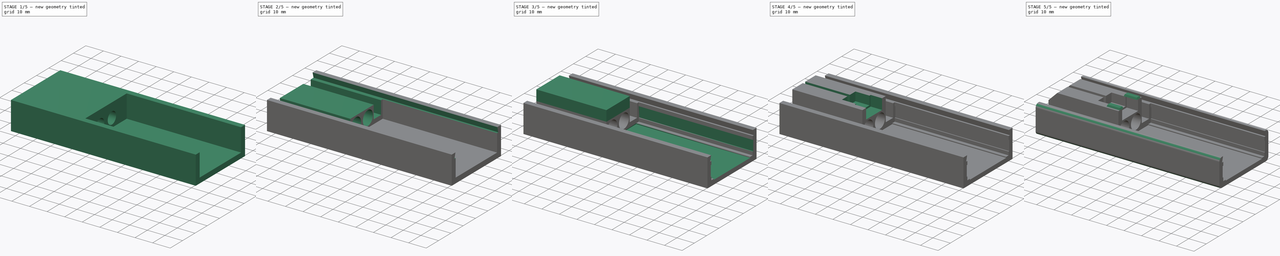
[diagram: build sequence overview — one tinted view per stage of 5, left to right]
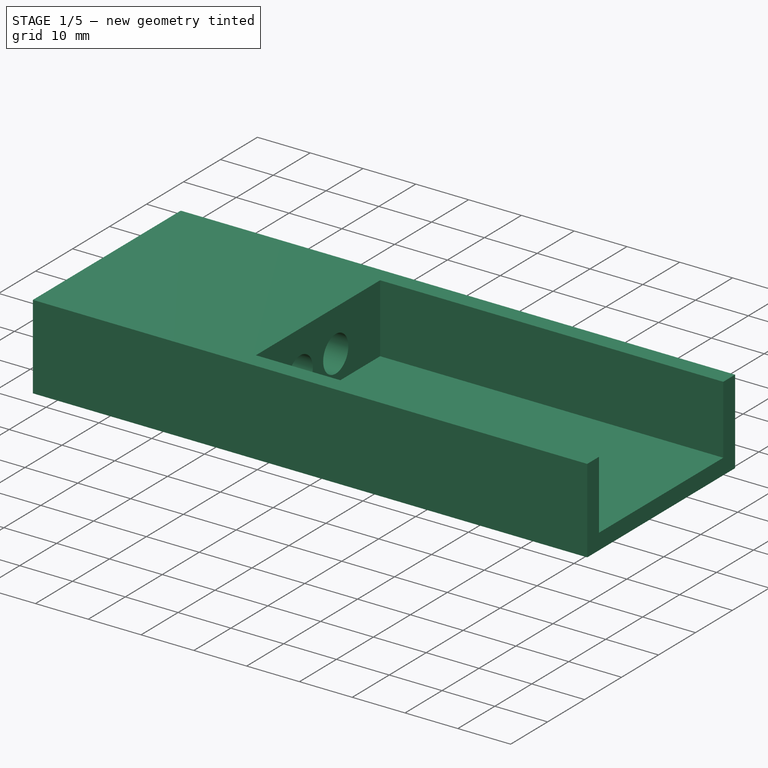
[diagram: stage 1 of 5 — iso view after this stage's code; geometry added in this stage tinted green]
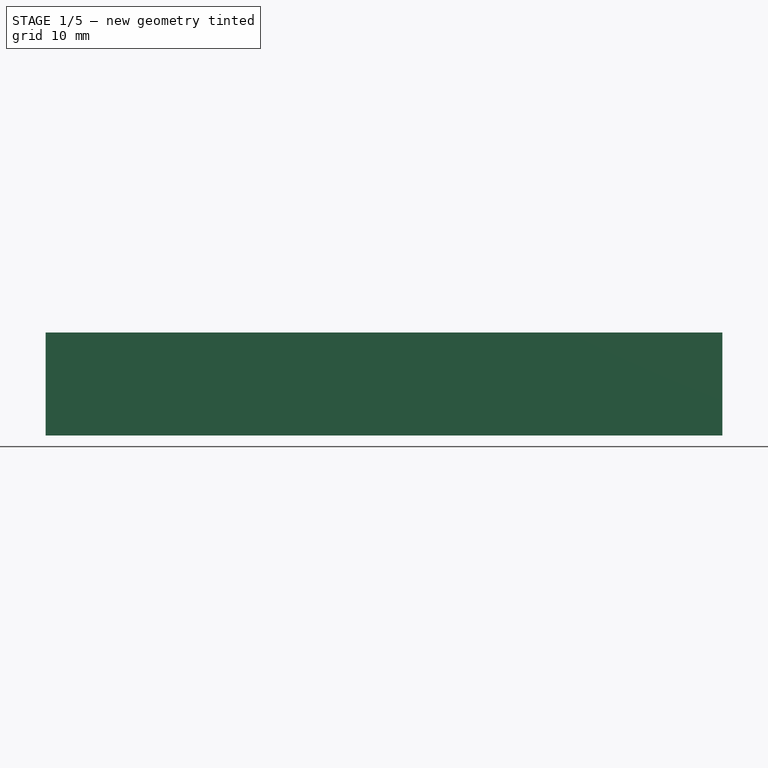
[diagram: stage 1 of 5 — front view after this stage's code; geometry added in this stage tinted green]
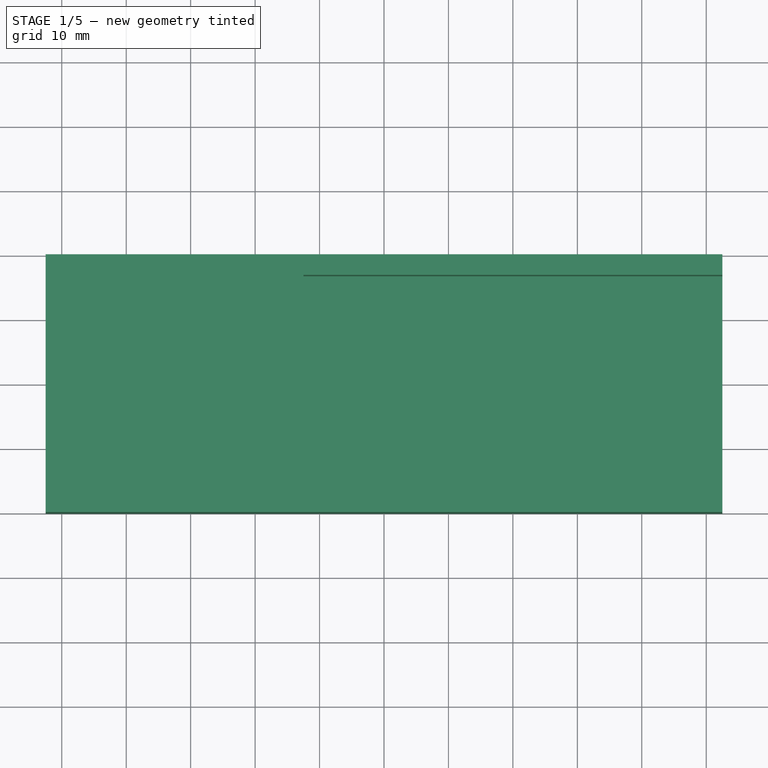
[diagram: stage 1 of 5 — top view after this stage's code; geometry added in this stage tinted green]
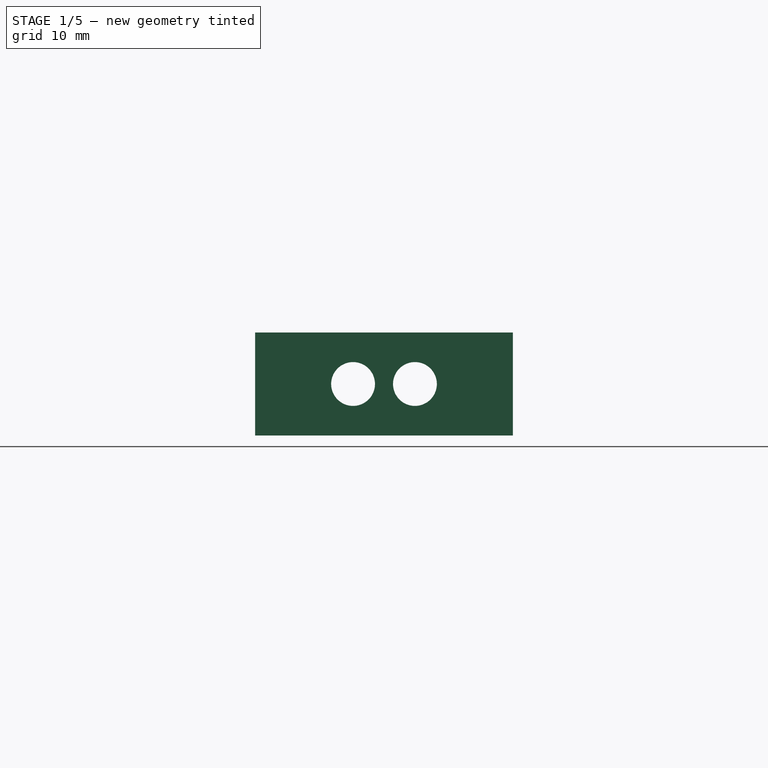
[diagram: stage 1 of 5 — right view after this stage's code; geometry added in this stage tinted green]
FCSTD DOCUMENT  (FreeCAD 0.20R29603 (Git))
Label: shassi
License: All rights reserved
LicenseURL: http://en.wikipedia.org/wiki/All_rights_reserved
objects: Sketcher::SketchObject×14, PartDesign::Pocket×11, PartDesign::Pad×3, PartDesign::Fillet×1, PartDesign::Chamfer×1, PartDesign::Body×1
note: 47 computed .brp shape members not serialized (recipe doc carries the construction recipe); baked Part::Feature solids carry a one-line shape summary decoded from their .brp

FEATURE [Sketcher::SketchObject] Sketch
  FullyConstrained = true
  MapMode = 5
  Support = -> [XY_Plane]
  sketch-geometry (4):
    g0: LineSegment StartX=-52.5 StartY=20 StartZ=0 EndX=52.5 EndY=20 EndZ=0
    g1: LineSegment StartX=52.5 StartY=20 StartZ=0 EndX=52.5 EndY=-20 EndZ=0
    g2: LineSegment StartX=52.5 StartY=-20 StartZ=0 EndX=-52.5 EndY=-20 EndZ=0
    g3: LineSegment StartX=-52.5 StartY=-20 StartZ=0 EndX=-52.5 EndY=20 EndZ=0
  constraints (11):
    c: Coincident(g0,g1)
    c: Coincident(g1,g2)
    c: Coincident(g2,g3)
    c: Coincident(g3,g0)
    c: Horizontal(g0)
    c: Horizontal(g2)
    c: Vertical(g1)
    c: Vertical(g3)
    c: Symmetric(g0,g1,g-1)
    c: DistanceX(g0,g0) = 105
    c: DistanceY(g3,g3) = 40
FEATURE [PartDesign::Pad] Pad
  Direction = (0,0,1)
  Length = 16
  Length2 = 10
  Profile = -> Sketch
  ReferenceAxis = -> Sketch [N_Axis]
  Type = 0
FEATURE [Sketcher::SketchObject] Sketch001
  ExternalGeometry = -> [Pad]
  FullyConstrained = true
  MapMode = 5
  Placement = pos=(0,0,16) rot=(0,0,1;0rad)
  Support = -> [Pad]
  sketch-geometry (4):
    g0: LineSegment StartX=-12.5 StartY=16.8 StartZ=0 EndX=52.5 EndY=16.8 EndZ=0
    g1: LineSegment StartX=52.5 StartY=16.8 StartZ=0 EndX=52.5 EndY=-16.8 EndZ=0
    g2: LineSegment StartX=52.5 StartY=-16.8 StartZ=0 EndX=-12.5 EndY=-16.8 EndZ=0
    g3: LineSegment StartX=-12.5 StartY=-16.8 StartZ=0 EndX=-12.5 EndY=16.8 EndZ=0
  constraints (12):
    c: Coincident(g0,g1)
    c: Coincident(g1,g2)
    c: Coincident(g2,g3)
    c: Coincident(g3,g0)
    c: Horizontal(g0)
    c: Horizontal(g2)
    c: Vertical(g1)
    c: Vertical(g3)
    c: PointOnObject(g0,g-3)
    c: DistanceY(g3,g3) = 33.6
    c: DistanceX(g0,g0) = 65
    c: Distance(g0,g-1) = 16.8
FEATURE [PartDesign::Pocket] Pocket
  BaseFeature = -> Pad
  Direction = (0,0,-1)
  Length = 13
  Length2 = 5
  Profile = -> Sketch001
  ReferenceAxis = -> Sketch001 [N_Axis]
  Type = 0
FEATURE [Sketcher::SketchObject] Sketch002
  ExternalGeometry = -> [Pocket]
  FullyConstrained = true
  MapMode = 5
  Placement = pos=(-12.5,0,0) rot=(0.57735,0.57735,0.57735;2.0944rad)
  Support = -> [Pocket]
  sketch-geometry (2):
    g0: Circle CenterX=4.8 CenterY=8 CenterZ=0 NormalX=0 NormalY=0 NormalZ=1 AngleXU=0 Radius=3.4
    g1: Circle CenterX=-4.8 CenterY=8 CenterZ=0 NormalX=0 NormalY=0 NormalZ=1 AngleXU=0 Radius=3.4
  constraints (5):
    c: Radius(g0) = 3.4
    c: Distance(g0,g-3) = 8
    c: Distance(g0,g-4) = 12
    c: Equal(g1,g0)
    c: Symmetric(g1,g0,g-2)
FEATURE [PartDesign::Pocket] Pocket001
  BaseFeature = -> Pocket
  Direction = (-1,0,0)
  Length = 5
  Length2 = 5
  Profile = -> Sketch002
  ReferenceAxis = -> Sketch002 [N_Axis]
  Type = 1
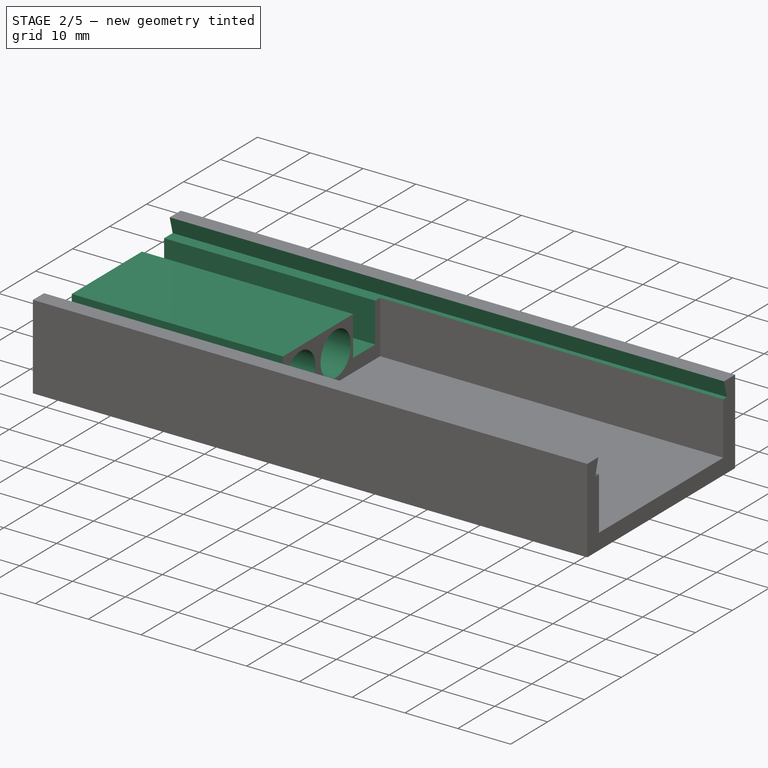
[diagram: stage 2 of 5 — iso view after this stage's code; geometry added in this stage tinted green]
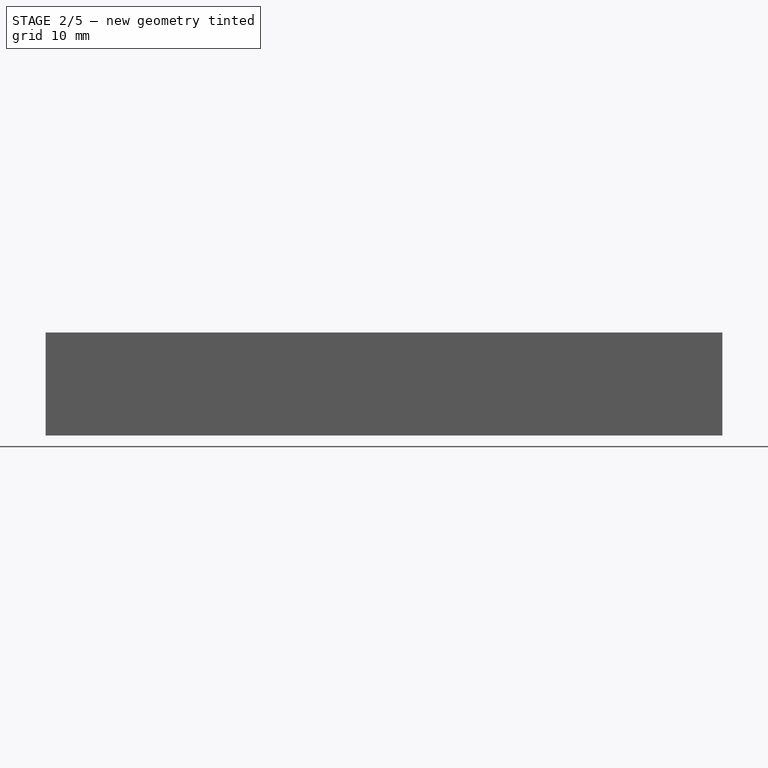
[diagram: stage 2 of 5 — front view after this stage's code; geometry added in this stage tinted green]
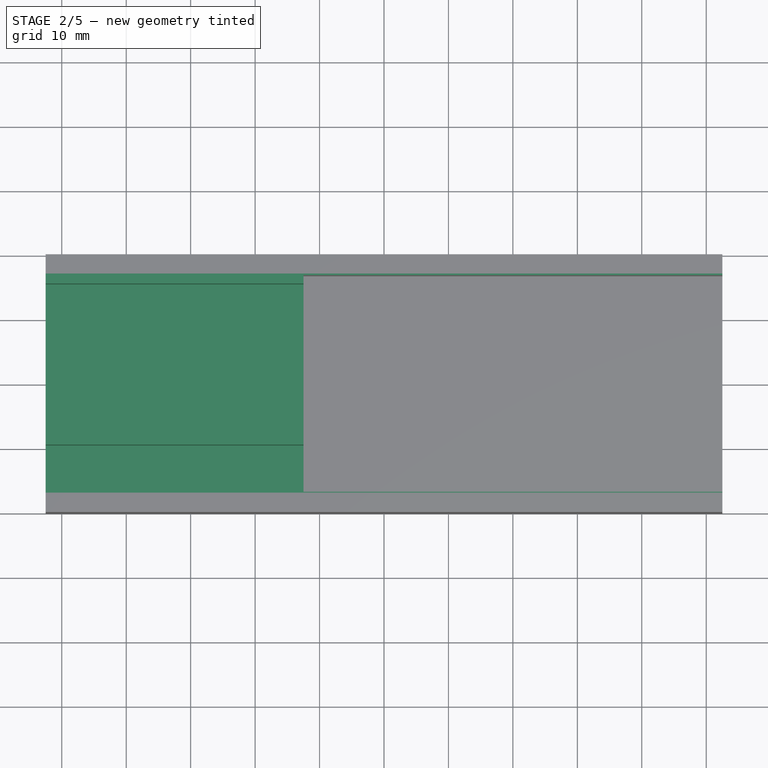
[diagram: stage 2 of 5 — top view after this stage's code; geometry added in this stage tinted green]
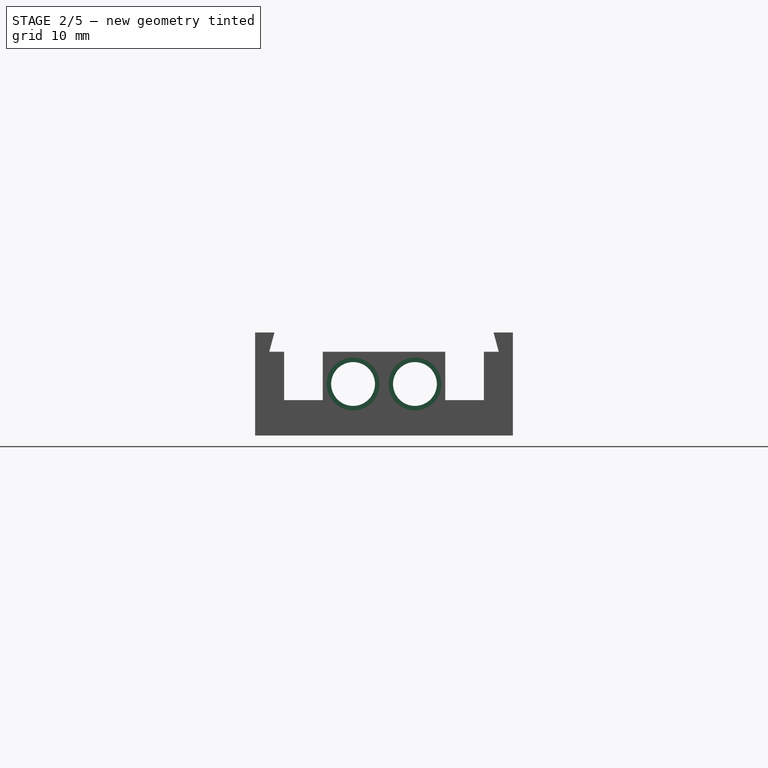
[diagram: stage 2 of 5 — right view after this stage's code; geometry added in this stage tinted green]
FEATURE [Sketcher::SketchObject] Sketch014
  ExternalGeometry = -> [Pocket001]
  FullyConstrained = true
  MapMode = 5
  Placement = pos=(-12.5,0,0) rot=(0.57735,0.57735,0.57735;2.0944rad)
  Support = -> [Pocket001]
  sketch-geometry (2):
    g0: Circle CenterX=4.8 CenterY=8 CenterZ=0 NormalX=0 NormalY=0 NormalZ=1 AngleXU=0 Radius=4.1
    g1: Circle CenterX=-4.8 CenterY=8 CenterZ=0 NormalX=0 NormalY=0 NormalZ=1 AngleXU=0 Radius=4.1
  constraints (4):
    c: Equal(g1,g0)
    c: Radius(g0) = 4.1
    c: Coincident(g1,g-3)
    c: Coincident(g0,g-4)
FEATURE [PartDesign::Pocket] Pocket002
  BaseFeature = -> Pocket001
  Direction = (-1,0,0)
  Length = 25
  Length2 = 5
  Profile = -> Sketch014
  ReferenceAxis = -> Sketch014 [N_Axis]
  Type = 0
FEATURE [Sketcher::SketchObject] Sketch006
  ExternalGeometry = -> [Pocket002]
  FullyConstrained = true
  MapMode = 5
  Placement = pos=(0,0,16) rot=(0,0,1;0rad)
  sketch-geometry (8):
    g0: LineSegment StartX=-52.5 StartY=15.5 StartZ=0 EndX=-12.5 EndY=15.5 EndZ=0
    g1: LineSegment StartX=-12.5 StartY=15.5 StartZ=0 EndX=-12.5 EndY=9.5 EndZ=0
    g2: LineSegment StartX=-12.5 StartY=9.5 StartZ=0 EndX=-52.5 EndY=9.5 EndZ=0
    g3: LineSegment StartX=-52.5 StartY=9.5 StartZ=0 EndX=-52.5 EndY=15.5 EndZ=0
    g4: LineSegment StartX=-52.5 StartY=-9.5 StartZ=0 EndX=-12.5 EndY=-9.5 EndZ=0
    g5: LineSegment StartX=-12.5 StartY=-9.5 StartZ=0 EndX=-12.5 EndY=-15.5 EndZ=0
    g6: LineSegment StartX=-12.5 StartY=-15.5 StartZ=0 EndX=-52.5 EndY=-15.5 EndZ=0
    g7: LineSegment StartX=-52.5 StartY=-15.5 StartZ=0 EndX=-52.5 EndY=-9.5 EndZ=0
  constraints (24):
    c: Coincident(g0,g1)
    c: Coincident(g1,g2)
    c: Coincident(g2,g3)
    c: Coincident(g3,g0)
    c: Horizontal(g0)
    c: Horizontal(g2)
    c: Vertical(g1)
    c: Vertical(g3)
    c: Coincident(g4,g5)
    c: Coincident(g5,g6)
    c: Coincident(g6,g7)
    c: Coincident(g7,g4)
    c: Horizontal(g4)
    c: Horizontal(g6)
    c: Vertical(g5)
    c: Vertical(g7)
    c: Equal(g0,g4)
    c: Equal(g3,g7)
    c: DistanceY(g3,g3) = 6
    c: PointOnObject(g0,g-3)
    c: PointOnObject(g4,g-3)
    c: PointOnObject(g0,g-4)
    c: Distance(g0,g-5) = 4.5
    c: Distance(g6,g-6) = 4.5
FEATURE [PartDesign::Pocket] Pocket003
  BaseFeature = -> Pocket002
  Direction = (0,0,-1)
  Length = 10.5
  Length2 = 5
  Profile = -> Sketch006
  ReferenceAxis = -> Sketch006 [N_Axis]
  Type = 0
FEATURE [Sketcher::SketchObject] Sketch011
  ExternalGeometry = -> [Pocket003]
  FullyConstrained = true
  MapMode = 5
  Placement = pos=(0,0,16) rot=(0,0,1;0rad)
  sketch-geometry (4):
    g0: LineSegment StartX=-52.5 StartY=17 StartZ=0 EndX=52.5 EndY=17 EndZ=0
    g1: LineSegment StartX=52.5 StartY=17 StartZ=0 EndX=52.5 EndY=-17 EndZ=0
    g2: LineSegment StartX=52.5 StartY=-17 StartZ=0 EndX=-52.5 EndY=-17 EndZ=0
    g3: LineSegment StartX=-52.5 StartY=-17 StartZ=0 EndX=-52.5 EndY=17 EndZ=0
  constraints (12):
    c: Coincident(g0,g1)
    c: Coincident(g1,g2)
    c: Coincident(g2,g3)
    c: Coincident(g3,g0)
    c: Horizontal(g0)
    c: Horizontal(g2)
    c: Vertical(g1)
    c: Vertical(g3)
    c: Distance(g0,g-5) = 3
    c: Distance(g1,g-6) = 3
    c: PointOnObject(g0,g-3)
    c: PointOnObject(g0,g-4)
FEATURE [PartDesign::Pocket] Pocket004
  BaseFeature = -> Pocket003
  Direction = (0,0,-1)
  Length = 3
  Length2 = 5
  Profile = -> Sketch011
  ReferenceAxis = -> Sketch011 [N_Axis]
  TaperAngle = 15
  Type = 0
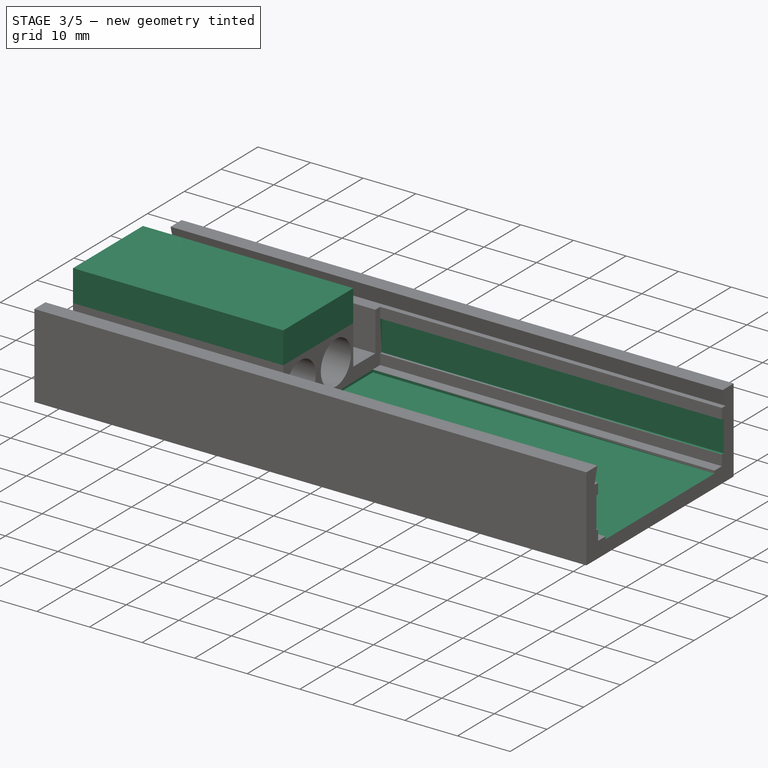
[diagram: stage 3 of 5 — iso view after this stage's code; geometry added in this stage tinted green]
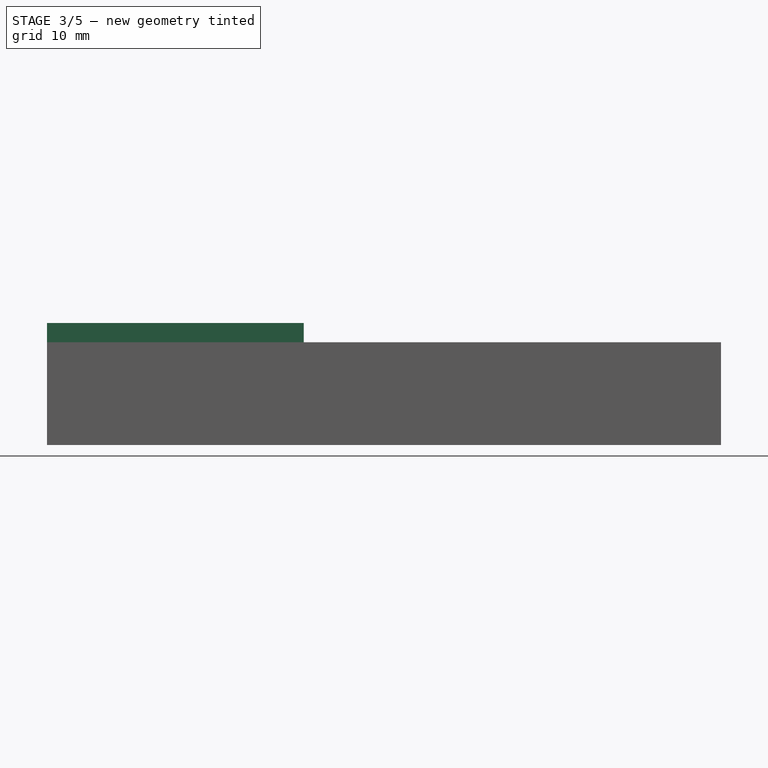
[diagram: stage 3 of 5 — front view after this stage's code; geometry added in this stage tinted green]
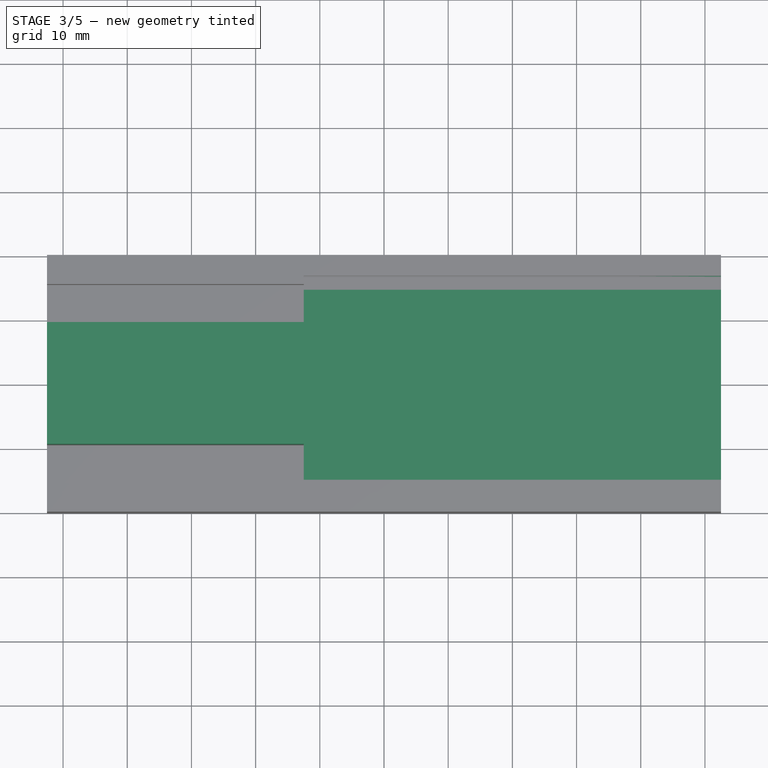
[diagram: stage 3 of 5 — top view after this stage's code; geometry added in this stage tinted green]
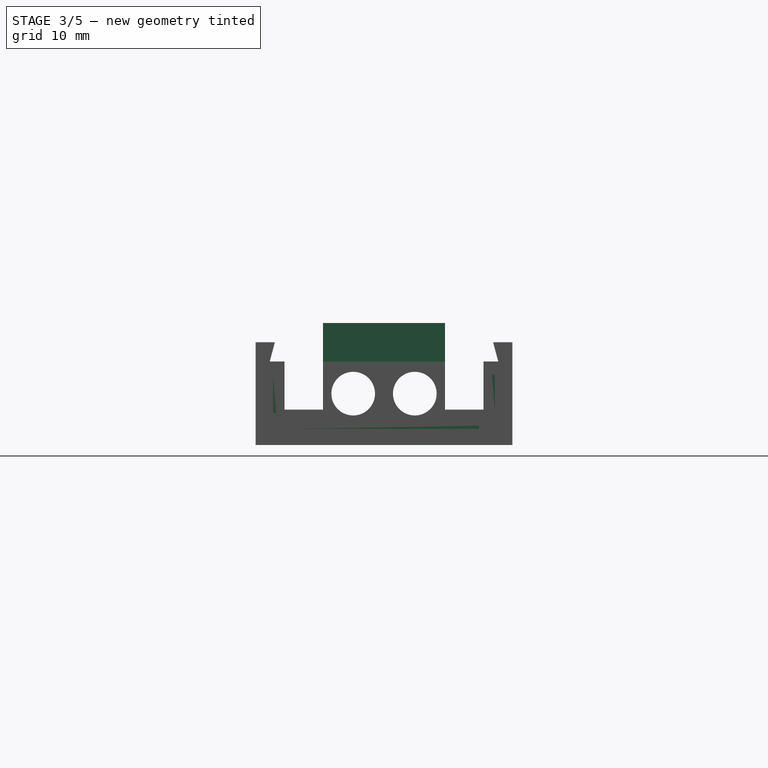
[diagram: stage 3 of 5 — right view after this stage's code; geometry added in this stage tinted green]
FEATURE [Sketcher::SketchObject] Sketch008
  ExternalGeometry = -> [Pocket004]
  FullyConstrained = true
  MapMode = 5
  Placement = pos=(0,0,3) rot=(0,0,1;0rad)
  sketch-geometry (4):
    g0: LineSegment StartX=-12.5 StartY=14.8 StartZ=0 EndX=52.5 EndY=14.8 EndZ=0
    g1: LineSegment StartX=52.5 StartY=14.8 StartZ=0 EndX=52.5 EndY=-14.8 EndZ=0
    g2: LineSegment StartX=52.5 StartY=-14.8 StartZ=0 EndX=-12.5 EndY=-14.8 EndZ=0
    g3: LineSegment StartX=-12.5 StartY=-14.8 StartZ=0 EndX=-12.5 EndY=14.8 EndZ=0
  constraints (12):
    c: Coincident(g0,g1)
    c: Coincident(g1,g2)
    c: Coincident(g2,g3)
    c: Coincident(g3,g0)
    c: Horizontal(g0)
    c: Horizontal(g2)
    c: Vertical(g1)
    c: Vertical(g3)
    c: PointOnObject(g0,g-5)
    c: PointOnObject(g0,g-6)
    c: Distance(g0,g-3) = 2
    c: Distance(g1,g-4) = 2
FEATURE [PartDesign::Pocket] Pocket005
  BaseFeature = -> Pocket004
  Direction = (0,0,-1)
  Length = 0.5
  Length2 = 5
  Profile = -> Sketch008
  ReferenceAxis = -> Sketch008 [N_Axis]
  Type = 0
FEATURE [Sketcher::SketchObject] Sketch010
  ExternalGeometry = -> [Pocket005]
  FullyConstrained = true
  MapMode = 5
  Placement = pos=(0,-16.8,0) rot=(0,0.707107,0.707107;3.14159rad)
  sketch-geometry (4):
    g0: LineSegment StartX=-52.5 StartY=11 StartZ=0 EndX=12.5 EndY=11 EndZ=0
    g1: LineSegment StartX=12.5 StartY=11 StartZ=0 EndX=12.5 EndY=5 EndZ=0
    g2: LineSegment StartX=12.5 StartY=5 StartZ=0 EndX=-52.5 EndY=5 EndZ=0
    g3: LineSegment StartX=-52.5 StartY=5 StartZ=0 EndX=-52.5 EndY=11 EndZ=0
  constraints (12):
    c: Coincident(g0,g1)
    c: Coincident(g1,g2)
    c: Coincident(g2,g3)
    c: Coincident(g3,g0)
    c: Horizontal(g0)
    c: Horizontal(g2)
    c: Vertical(g1)
    c: Vertical(g3)
    c: Distance(g0,g-4) = 2
    c: Distance(g2,g-5) = 2
    c: PointOnObject(g0,g-3)
    c: PointOnObject(g0,g-6)
FEATURE [PartDesign::Pocket] Pocket006
  BaseFeature = -> Pocket005
  Direction = (0,-1,2e-16)
  Length = 0.5
  Length2 = 5
  Profile = -> Sketch010
  ReferenceAxis = -> Sketch010 [N_Axis]
  Type = 0
FEATURE [Sketcher::SketchObject] Sketch015
  ExternalGeometry = -> [Pocket006]
  FullyConstrained = true
  MapMode = 5
  Placement = pos=(0,16.8,0) rot=(1,0,0;1.5708rad)
  Support = -> [Pocket006]
  sketch-geometry (4):
    g0: LineSegment StartX=-12.5 StartY=11 StartZ=0 EndX=52.5 EndY=11 EndZ=0
    g1: LineSegment StartX=52.5 StartY=11 StartZ=0 EndX=52.5 EndY=5 EndZ=0
    g2: LineSegment StartX=52.5 StartY=5 StartZ=0 EndX=-12.5 EndY=5 EndZ=0
    g3: LineSegment StartX=-12.5 StartY=5 StartZ=0 EndX=-12.5 EndY=11 EndZ=0
  constraints (12):
    c: Coincident(g0,g1)
    c: Coincident(g1,g2)
    c: Coincident(g2,g3)
    c: Coincident(g3,g0)
    c: Horizontal(g0)
    c: Horizontal(g2)
    c: Vertical(g1)
    c: Vertical(g3)
    c: Distance(g0,g-3) = 2
    c: Distance(g1,g-4) = 2
    c: PointOnObject(g0,g-5)
    c: PointOnObject(g0,g-6)
FEATURE [PartDesign::Pocket] Pocket007
  BaseFeature = -> Pocket006
  Direction = (0,1,-2e-16)
  Length = 0.5
  Length2 = 5
  Profile = -> Sketch015
  ReferenceAxis = -> Sketch015 [N_Axis]
  Type = 0
FEATURE [Sketcher::SketchObject] Sketch016
  ExternalGeometry = -> [Pocket007]
  FullyConstrained = true
  MapMode = 5
  Placement = pos=(0,0,13) rot=(0,0,1;0rad)
  Support = -> [Pocket007]
  sketch-geometry (4):
    g0: LineSegment StartX=-52.5 StartY=9.5 StartZ=0 EndX=-12.5 EndY=9.5 EndZ=0
    g1: LineSegment StartX=-12.5 StartY=9.5 StartZ=0 EndX=-12.5 EndY=-9.5 EndZ=0
    g2: LineSegment StartX=-12.5 StartY=-9.5 StartZ=0 EndX=-52.5 EndY=-9.5 EndZ=0
    g3: LineSegment StartX=-52.5 StartY=-9.5 StartZ=0 EndX=-52.5 EndY=9.5 EndZ=0
  constraints (12):
    c: Coincident(g0,g1)
    c: Coincident(g1,g2)
    c: Coincident(g2,g3)
    c: Coincident(g3,g0)
    c: Horizontal(g0)
    c: Horizontal(g2)
    c: Vertical(g1)
    c: Vertical(g3)
    c: PointOnObject(g0,g-3)
    c: PointOnObject(g2,g-4)
    c: PointOnObject(g2,g-5)
    c: PointOnObject(g1,g-6)
FEATURE [PartDesign::Pad] Pad001
  BaseFeature = -> Pocket007
  Direction = (0,0,1)
  Length = 6
  Length2 = 10
  Profile = -> Sketch016
  ReferenceAxis = -> Sketch016 [N_Axis]
  Type = 0
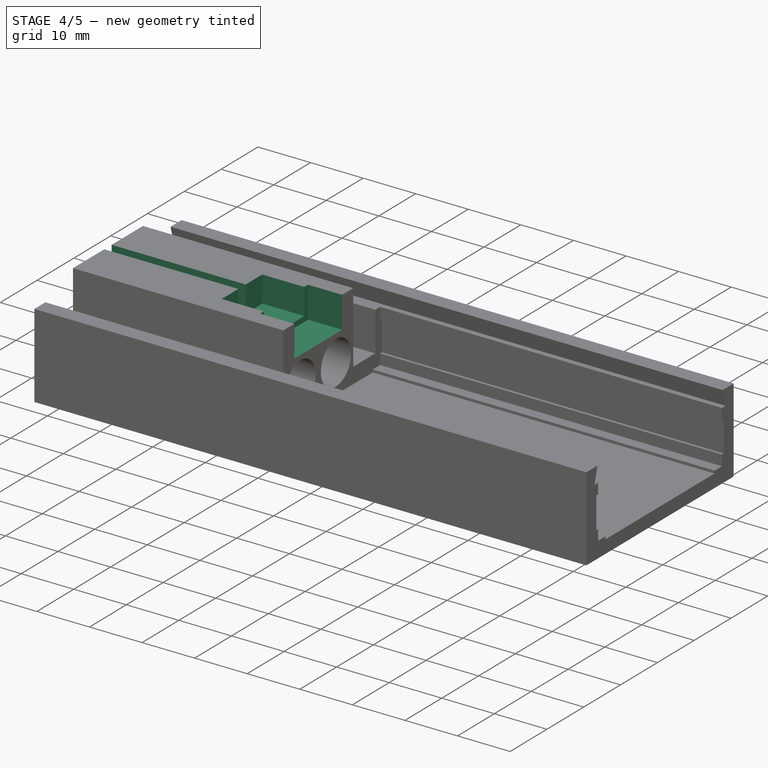
[diagram: stage 4 of 5 — iso view after this stage's code; geometry added in this stage tinted green]
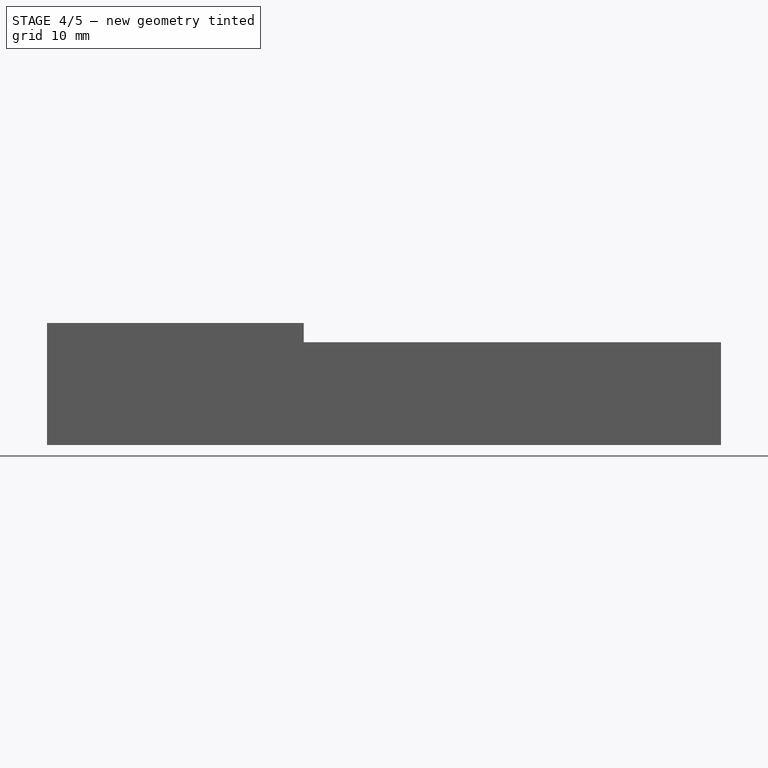
[diagram: stage 4 of 5 — front view after this stage's code; geometry added in this stage tinted green]
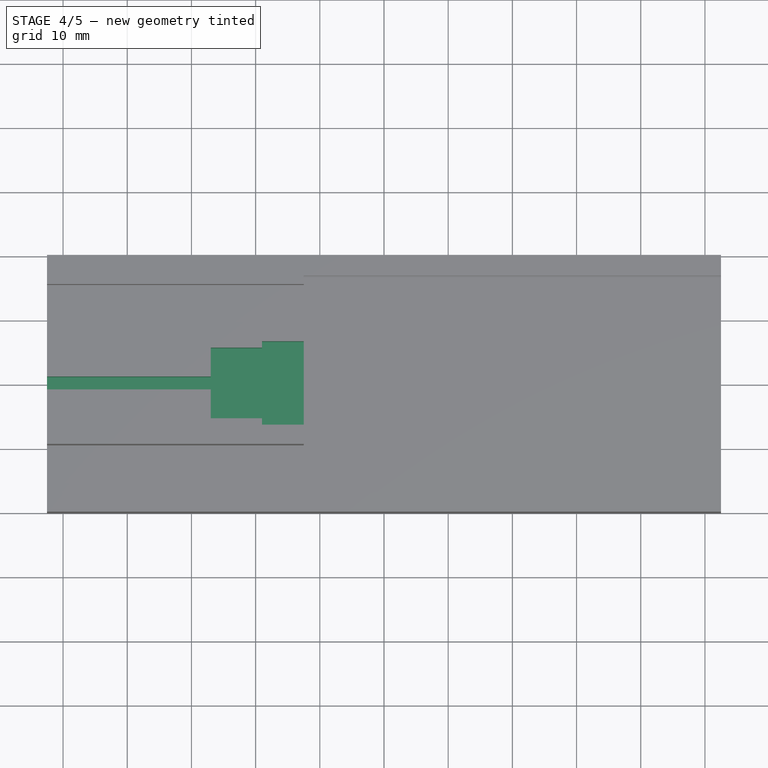
[diagram: stage 4 of 5 — top view after this stage's code; geometry added in this stage tinted green]
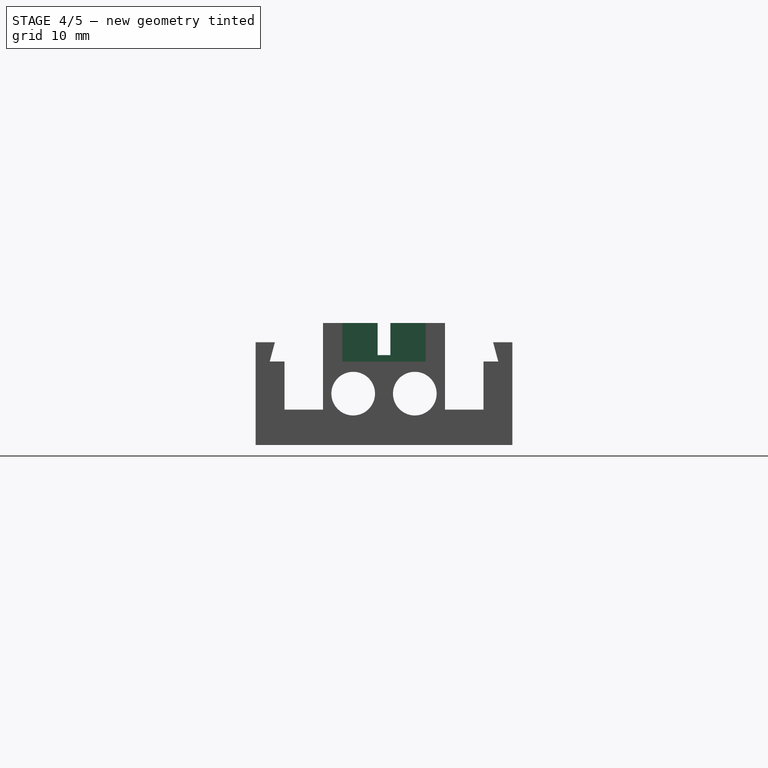
[diagram: stage 4 of 5 — right view after this stage's code; geometry added in this stage tinted green]
FEATURE [Sketcher::SketchObject] Sketch017
  ExternalGeometry = -> [Pad001]
  FullyConstrained = true
  MapMode = 5
  Placement = pos=(0,0,19) rot=(0,0,1;0rad)
  Support = -> [Pad001]
  sketch-geometry (4):
    g0: LineSegment StartX=-19 StartY=6.5 StartZ=0 EndX=-12.5 EndY=6.5 EndZ=0
    g1: LineSegment StartX=-12.5 StartY=6.5 StartZ=0 EndX=-12.5 EndY=-6.5 EndZ=0
    g2: LineSegment StartX=-12.5 StartY=-6.5 StartZ=0 EndX=-19 EndY=-6.5 EndZ=0
    g3: LineSegment StartX=-19 StartY=-6.5 StartZ=0 EndX=-19 EndY=6.5 EndZ=0
  constraints (12):
    c: Coincident(g0,g1)
    c: Coincident(g1,g2)
    c: Coincident(g2,g3)
    c: Coincident(g3,g0)
    c: Horizontal(g0)
    c: Horizontal(g2)
    c: Vertical(g1)
    c: Vertical(g3)
    c: PointOnObject(g0,g-3)
    c: DistanceY(g3,g3) = 13
    c: DistanceX(g0,g0) = 6.5
    c: Distance(g0,g-1) = 6.5
FEATURE [PartDesign::Pocket] Pocket008
  BaseFeature = -> Pad001
  Direction = (0,0,-1)
  Length = 6
  Length2 = 5
  Profile = -> Sketch017
  ReferenceAxis = -> Sketch017 [N_Axis]
  Type = 0
FEATURE [Sketcher::SketchObject] Sketch018
  ExternalGeometry = -> [Pocket008]
  FullyConstrained = true
  MapMode = 5
  Placement = pos=(0,0,19) rot=(0,0,1;0rad)
  Support = -> [Pocket008]
  sketch-geometry (4):
    g0: LineSegment StartX=-27 StartY=5.5 StartZ=0 EndX=-19 EndY=5.5 EndZ=0
    g1: LineSegment StartX=-19 StartY=5.5 StartZ=0 EndX=-19 EndY=-5.5 EndZ=0
    g2: LineSegment StartX=-19 StartY=-5.5 StartZ=0 EndX=-27 EndY=-5.5 EndZ=0
    g3: LineSegment StartX=-27 StartY=-5.5 StartZ=0 EndX=-27 EndY=5.5 EndZ=0
  constraints (12):
    c: Coincident(g0,g1)
    c: Coincident(g1,g2)
    c: Coincident(g2,g3)
    c: Coincident(g3,g0)
    c: Horizontal(g0)
    c: Horizontal(g2)
    c: Vertical(g1)
    c: Vertical(g3)
    c: DistanceX(g0,g0) = 8
    c: DistanceY(g3,g3) = 11
    c: Distance(g0,g-1) = 5.5
    c: PointOnObject(g0,g-3)
FEATURE [PartDesign::Pocket] Pocket009
  BaseFeature = -> Pocket008
  Direction = (0,0,-1)
  Length = 5
  Length2 = 5
  Profile = -> Sketch018
  ReferenceAxis = -> Sketch018 [N_Axis]
  Type = 0
FEATURE [Sketcher::SketchObject] Sketch019
  ExternalGeometry = -> [Pocket009]
  FullyConstrained = true
  MapMode = 5
  Placement = pos=(0,0,19) rot=(0,0,1;0rad)
  Support = -> [Pocket009]
  sketch-geometry (4):
    g0: LineSegment StartX=-52.5 StartY=1 StartZ=0 EndX=-27 EndY=1 EndZ=0
    g1: LineSegment StartX=-27 StartY=1 StartZ=0 EndX=-27 EndY=-1 EndZ=0
    g2: LineSegment StartX=-27 StartY=-1 StartZ=0 EndX=-52.5 EndY=-1 EndZ=0
    g3: LineSegment StartX=-52.5 StartY=-1 StartZ=0 EndX=-52.5 EndY=1 EndZ=0
  constraints (12):
    c: Coincident(g0,g1)
    c: Coincident(g1,g2)
    c: Coincident(g2,g3)
    c: Coincident(g3,g0)
    c: Horizontal(g0)
    c: Horizontal(g2)
    c: Vertical(g1)
    c: Vertical(g3)
    c: DistanceY(g3,g3) = 2
    c: Distance(g0,g-1) = 1
    c: PointOnObject(g0,g-3)
    c: PointOnObject(g0,g-4)
FEATURE [PartDesign::Pocket] Pocket010
  BaseFeature = -> Pocket009
  Direction = (0,0,-1)
  Length = 5
  Length2 = 5
  Profile = -> Sketch019
  ReferenceAxis = -> Sketch019 [N_Axis]
  Type = 0
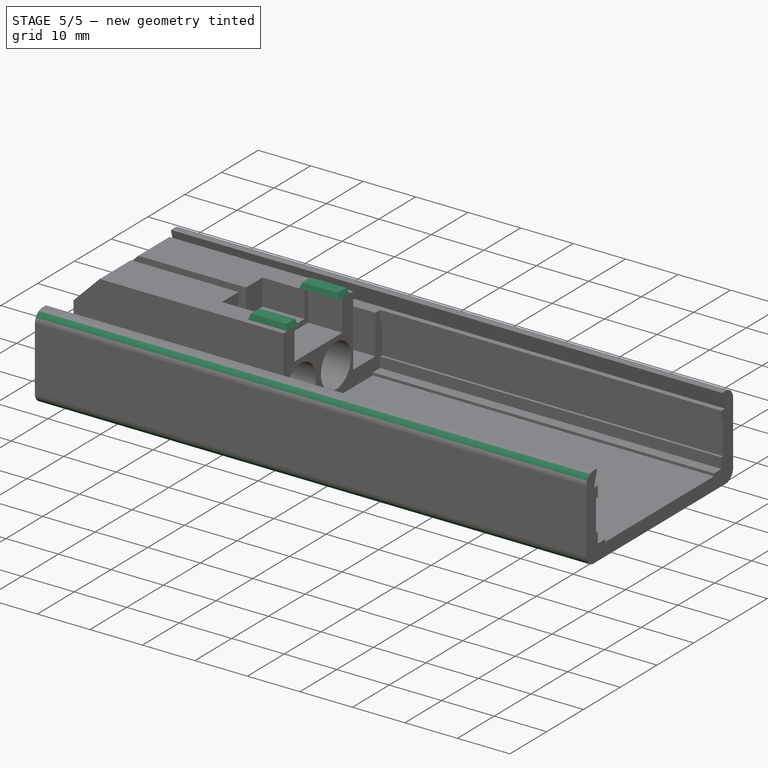
[diagram: stage 5 of 5 — iso view after this stage's code; geometry added in this stage tinted green]
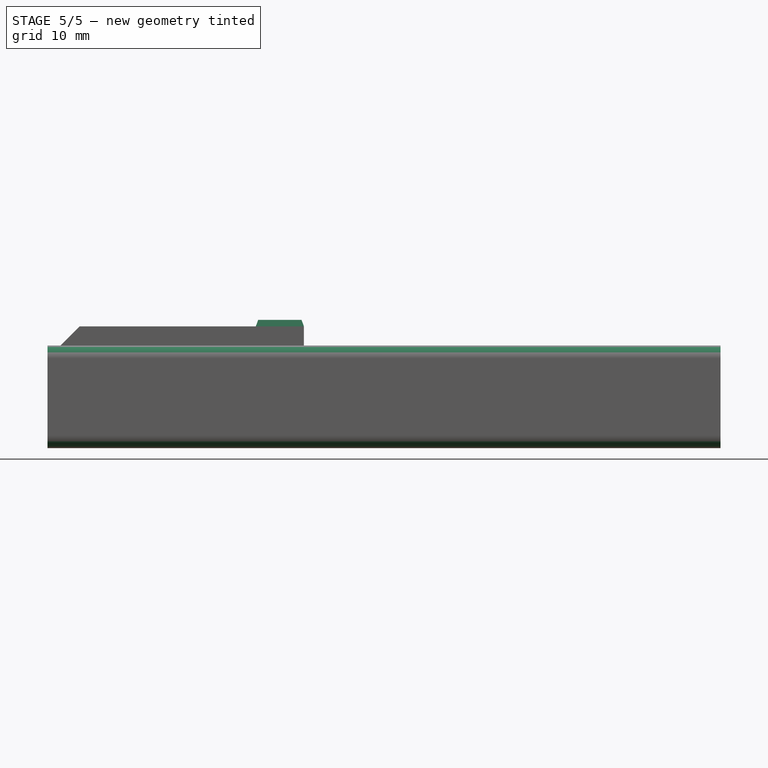
[diagram: stage 5 of 5 — front view after this stage's code; geometry added in this stage tinted green]
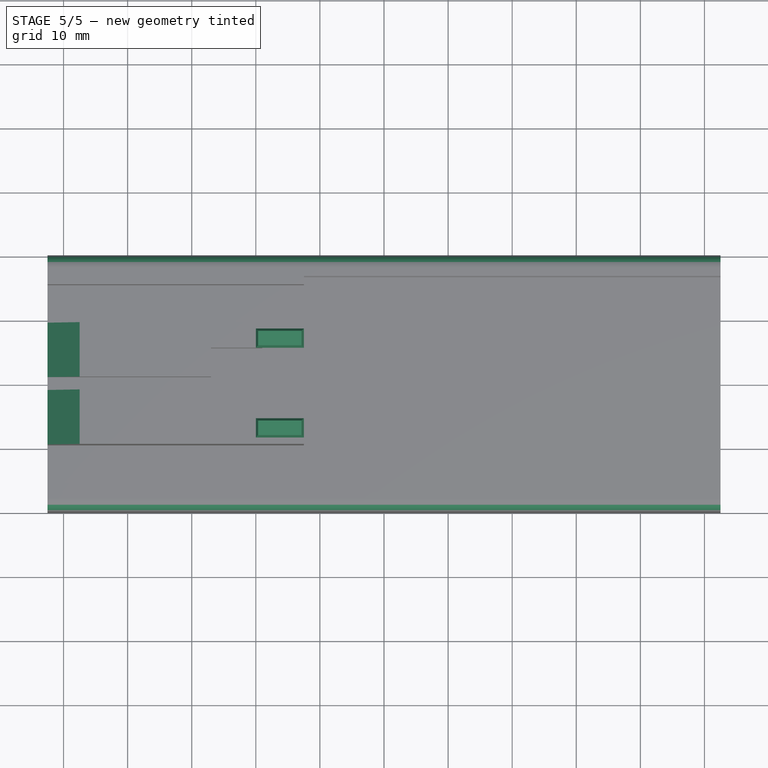
[diagram: stage 5 of 5 — top view after this stage's code; geometry added in this stage tinted green]
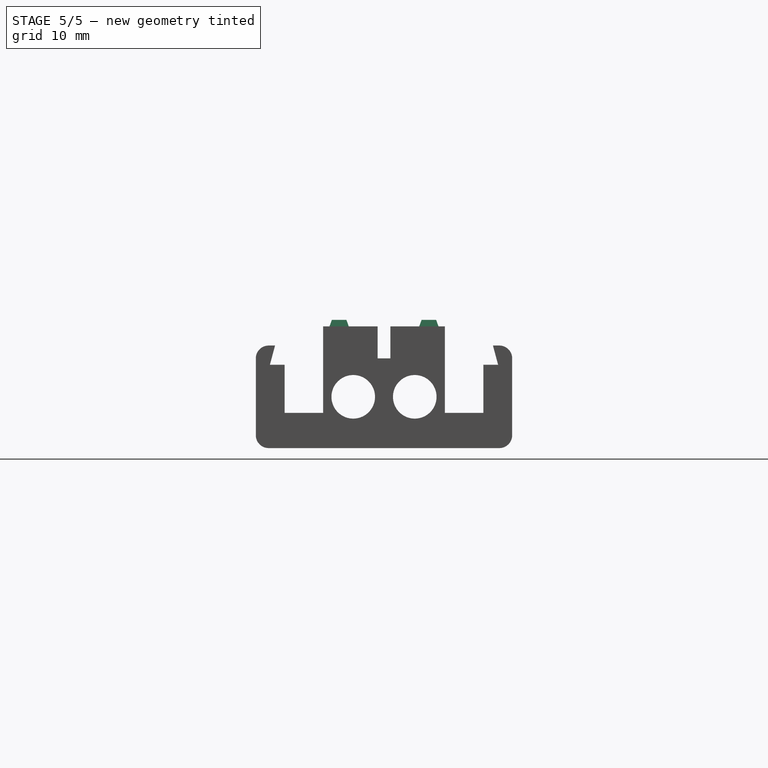
[diagram: stage 5 of 5 — right view after this stage's code; geometry added in this stage tinted green]
FEATURE [Sketcher::SketchObject] Sketch020
  ExternalGeometry = -> [Pocket010]
  FullyConstrained = true
  MapMode = 5
  Placement = pos=(0,0,19) rot=(0,0,1;0rad)
  Support = -> [Pocket010]
  sketch-geometry (8):
    g0: LineSegment StartX=-20 StartY=8.5 StartZ=0 EndX=-12.5 EndY=8.5 EndZ=0
    g1: LineSegment StartX=-12.5 StartY=8.5 StartZ=0 EndX=-12.5 EndY=5.5 EndZ=0
    g2: LineSegment StartX=-12.5 StartY=5.5 StartZ=0 EndX=-20 EndY=5.5 EndZ=0
    g3: LineSegment StartX=-20 StartY=5.5 StartZ=0 EndX=-20 EndY=8.5 EndZ=0
    g4: LineSegment StartX=-20 StartY=-5.5 StartZ=0 EndX=-12.5 EndY=-5.5 EndZ=0
    g5: LineSegment StartX=-12.5 StartY=-5.5 StartZ=0 EndX=-12.5 EndY=-8.5 EndZ=0
    g6: LineSegment StartX=-12.5 StartY=-8.5 StartZ=0 EndX=-20 EndY=-8.5 EndZ=0
    g7: LineSegment StartX=-20 StartY=-8.5 StartZ=0 EndX=-20 EndY=-5.5 EndZ=0
  constraints (24):
    c: Coincident(g0,g1)
    c: Coincident(g1,g2)
    c: Coincident(g2,g3)
    c: Coincident(g3,g0)
    c: Horizontal(g0)
    c: Horizontal(g2)
    c: Vertical(g1)
    c: Vertical(g3)
    c: Coincident(g4,g5)
    c: Coincident(g5,g6)
    c: Coincident(g6,g7)
    c: Coincident(g7,g4)
    c: Horizontal(g4)
    c: Horizontal(g6)
    c: Vertical(g5)
    c: Vertical(g7)
    c: Equal(g3,g7)
    c: Equal(g0,g4)
    c: PointOnObject(g1,g-3)
    c: PointOnObject(g4,g-3)
    c: DistanceY(g3,g3) = 3
    c: Distance(g0,g-4) = 2
    c: Distance(g6,g-5) = 2
    c: DistanceX(g2,g2) = 7.5
FEATURE [PartDesign::Pad] Pad002
  BaseFeature = -> Pocket010
  Direction = (0,0,1)
  Length = 1
  Length2 = 10
  Profile = -> Sketch020
  ReferenceAxis = -> Sketch020 [N_Axis]
  TaperAngle = -20
  Type = 0
FEATURE [PartDesign::Fillet] Fillet
  Base = -> Pad002 [Edge75,Edge45,Edge4,Edge3]
  BaseFeature = -> Pad002
  Radius = 2
  SupportTransform = false
  UseAllEdges = false
FEATURE [PartDesign::Chamfer] Chamfer
  Angle = 45
  Base = -> Fillet [Edge86,Edge82]
  BaseFeature = -> Fillet
  ChamferType = 0
  FlipDirection = false
  Size = 5
  Size2 = 1
  SupportTransform = false
  UseAllEdges = false
FEATURE [PartDesign::Body] Body
  Group = -> [Sketch,Pad,Sketch001,Pocket,Sketch002,Pocket001,Sketch014,Pocket002,Sketch006,Pocket003,Sketch011,Pocket004,Sketch008,Pocket005,Sketch010,Pocket006,Sketch015,Pocket007,Sketch016,Pad001,Sketch017,Pocket008,Sketch018,Pocket009,Sketch019,Pocket010,Sketch020,Pad002,Fillet,Chamfer]
  Origin = -> Origin
  Tip = -> Chamfer
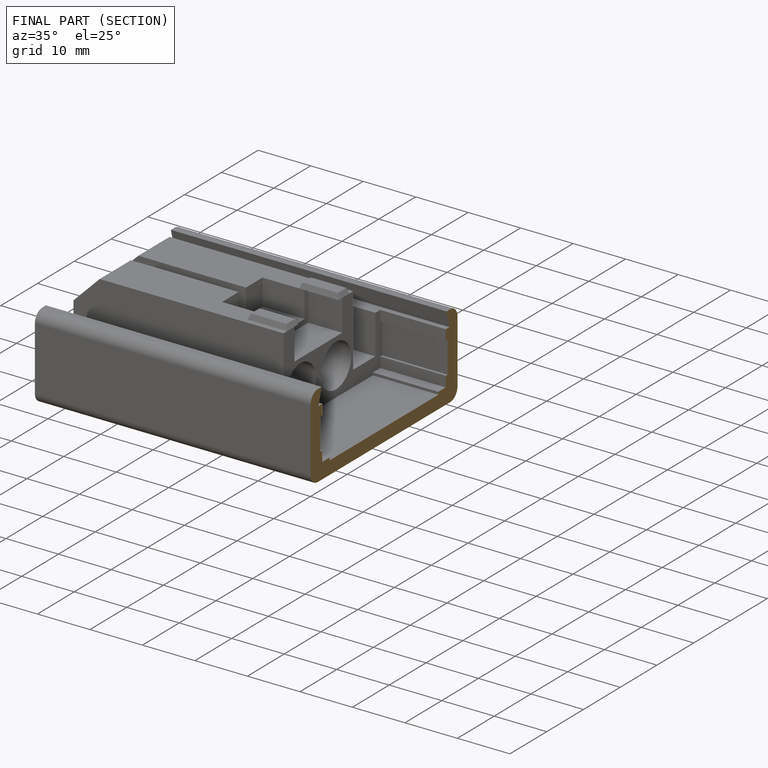
[diagram: finished part — half-section view (interior)]
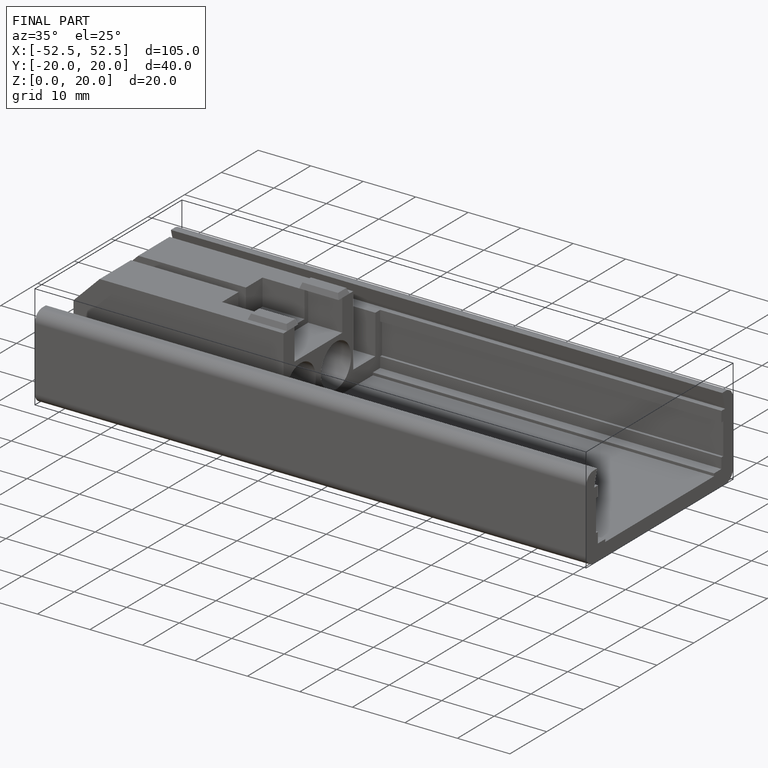
[diagram: finished part — iso view with bounding-box wireframe]
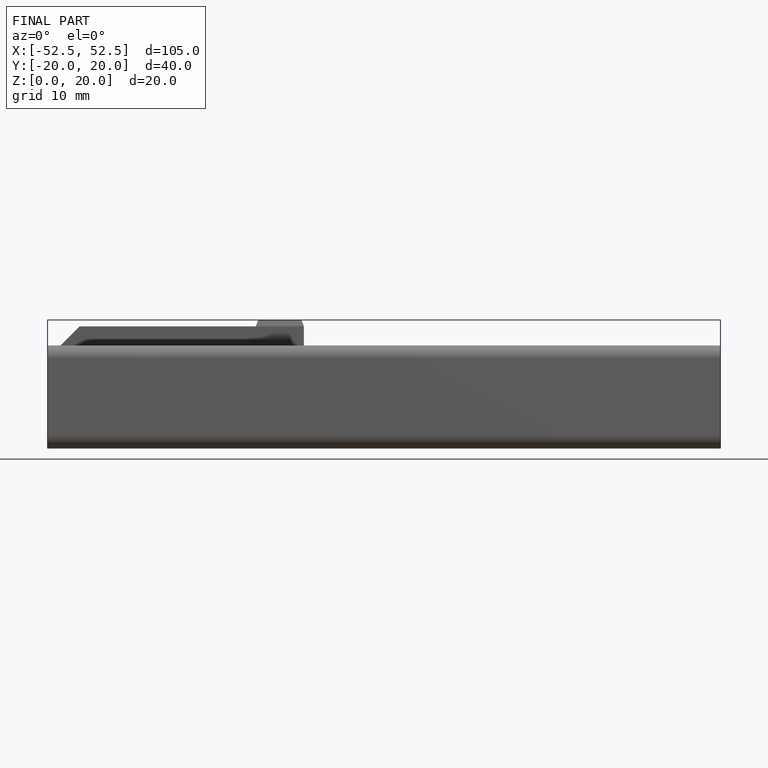
[diagram: finished part — front view with bounding-box wireframe]
